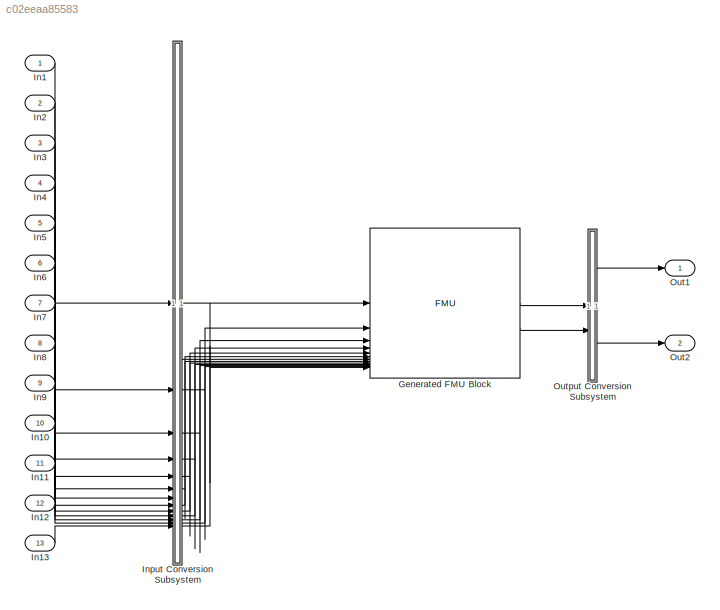
MODEL slx_c02eeaa85583
KIND model
CONFIG AbsTol = auto
CONFIG EnableMultiTasking = off
CONFIG FixedStep = auto
CONFIG MaxStep = auto
CONFIG MinStep = auto
CONFIG RelTol = 1e-3
CONFIG SampleTimeConstraint = Unconstrained
CONFIG SolverName = VariableStepAuto
CONFIG StartTime = 0.0
CONFIG StopTime = inf
BLOCK [FMU] Generated FMU Block
  FMUCreateBusObject = off
  FMUInitializeEnumObject = off
  FMUMode = CoSimulation
  FMUName = SH_control
  FMUSampleTime = 0.00026667
  MaskDisplay = if (exist([Simulink.fileGenControl('get','CacheFolder') '\slprj\_fmu\569492d8a8441ae19fe950d3b8ff40c2\SH_control\model.png'],'file'))\n    image([Simulink.fileGenControl('get','CacheFolder') '\slprj\_fmu\569492d8a8441ae19fe950d3b8ff40c2\SH_control\model.png']);\nelse\n    disp('SH_control');\nend\nport_label('output',1,'volt_req_d');\nport_label('output',2,'volt_req_q');\nport_label('input',1,'LD_current...<+471ch>
  MaskType = SH_control [Co-Simulation, v2.0]
BLOCK [Inport] In1
  OutDataTypeStr = double
  PortDimensions = [3]
  SampleTime = 0.00026667
  SignalType = real
  VarSizeSig = No
BLOCK [Inport] In10
  OutDataTypeStr = double
  Port = 10
  PortDimensions = [3]
  SampleTime = 0.00026667
  SignalType = real
  VarSizeSig = No
BLOCK [Inport] In11
  OutDataTypeStr = double
  Port = 11
  PortDimensions = [3]
  SampleTime = 0.00026667
  SignalType = real
  VarSizeSig = No
BLOCK [Inport] In12
  OutDataTypeStr = double
  Port = 12
  PortDimensions = [3]
  SampleTime = 0.00026667
  SignalType = real
  VarSizeSig = No
BLOCK [Inport] In13
  OutDataTypeStr = double
  Port = 13
  PortDimensions = [3]
  SampleTime = 0.00026667
  SignalType = real
  VarSizeSig = No
BLOCK [Inport] In2
  OutDataTypeStr = int32
  Port = 2
  PortDimensions = [1]
  SampleTime = 0.00026667
  SignalType = real
  VarSizeSig = No
BLOCK [Inport] In3
  OutDataTypeStr = int32
  Port = 3
  PortDimensions = [1]
  SampleTime = 0.00026667
  SignalType = real
  VarSizeSig = No
BLOCK [Inport] In4
  OutDataTypeStr = double
  Port = 4
  PortDimensions = [1]
  SampleTime = 0.00026667
  SignalType = real
  VarSizeSig = No
BLOCK [Inport] In5
  OutDataTypeStr = double
  Port = 5
  PortDimensions = [1]
  SampleTime = 0.00026667
  SignalType = real
  VarSizeSig = No
BLOCK [Inport] In6
  OutDataTypeStr = double
  Port = 6
  PortDimensions = [3]
  SampleTime = 0.00026667
  SignalType = real
  VarSizeSig = No
BLOCK [Inport] In7
  OutDataTypeStr = int32
  Port = 7
  PortDimensions = [1]
  SampleTime = 0.00026667
  SignalType = real
  VarSizeSig = No
BLOCK [Inport] In8
  OutDataTypeStr = double
  Port = 8
  PortDimensions = [3]
  SampleTime = 0.00026667
  SignalType = real
  VarSizeSig = No
BLOCK [Inport] In9
  OutDataTypeStr = double
  Port = 9
  PortDimensions = [3]
  SampleTime = 0.00026667
  SignalType = real
  VarSizeSig = No
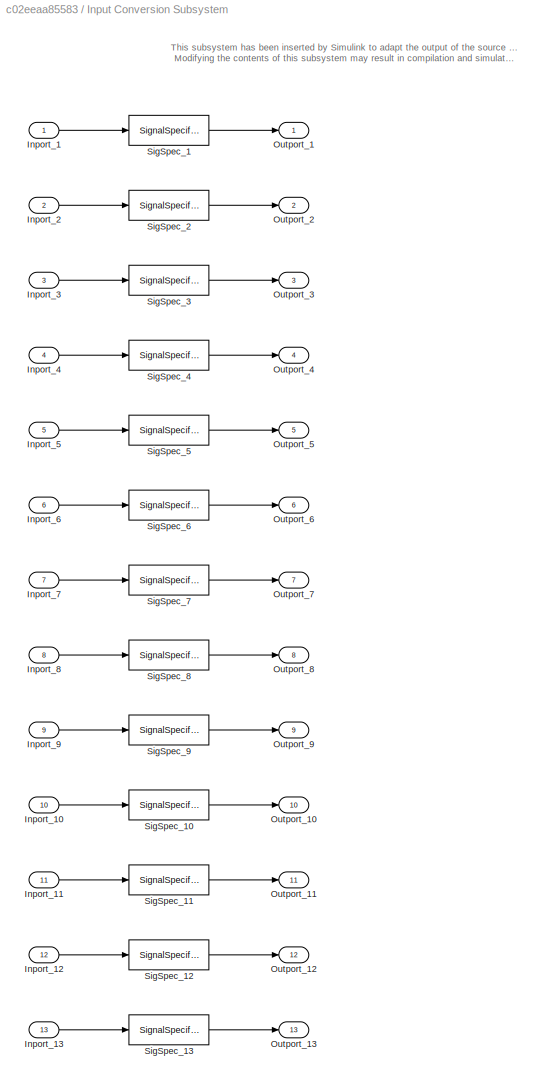
BLOCK [SubSystem] Input Conversion Subsystem
  AttributesFormatString = %<Description>
  Description = Signal spec.\nand routing
  Permissions = ReadOnly
  PermitHierarchicalResolution = ExplicitOnly
  Tag = __SLT_ICS__
  TreatAsGroupedWhenPropagatingVariantConditions = off
  UserDataPersistent = on
BLOCK [Inport] Input Conversion Subsystem/Inport_1
BLOCK [Inport] Input Conversion Subsystem/Inport_10
  Port = 10
BLOCK [Inport] Input Conversion Subsystem/Inport_11
  Port = 11
BLOCK [Inport] Input Conversion Subsystem/Inport_12
  Port = 12
BLOCK [Inport] Input Conversion Subsystem/Inport_13
  Port = 13
BLOCK [Inport] Input Conversion Subsystem/Inport_2
  Port = 2
BLOCK [Inport] Input Conversion Subsystem/Inport_3
  Port = 3
BLOCK [Inport] Input Conversion Subsystem/Inport_4
  Port = 4
BLOCK [Inport] Input Conversion Subsystem/Inport_5
  Port = 5
BLOCK [Inport] Input Conversion Subsystem/Inport_6
  Port = 6
BLOCK [Inport] Input Conversion Subsystem/Inport_7
  Port = 7
BLOCK [Inport] Input Conversion Subsystem/Inport_8
  Port = 8
BLOCK [Inport] Input Conversion Subsystem/Inport_9
  Port = 9
BLOCK [Outport] Input Conversion Subsystem/Outport_1
BLOCK [Outport] Input Conversion Subsystem/Outport_10
  Port = 10
BLOCK [Outport] Input Conversion Subsystem/Outport_11
  Port = 11
BLOCK [Outport] Input Conversion Subsystem/Outport_12
  Port = 12
BLOCK [Outport] Input Conversion Subsystem/Outport_13
  Port = 13
BLOCK [Outport] Input Conversion Subsystem/Outport_2
  Port = 2
BLOCK [Outport] Input Conversion Subsystem/Outport_3
  Port = 3
BLOCK [Outport] Input Conversion Subsystem/Outport_4
  Port = 4
BLOCK [Outport] Input Conversion Subsystem/Outport_5
  Port = 5
BLOCK [Outport] Input Conversion Subsystem/Outport_6
  Port = 6
BLOCK [Outport] Input Conversion Subsystem/Outport_7
  Port = 7
BLOCK [Outport] Input Conversion Subsystem/Outport_8
  Port = 8
BLOCK [Outport] Input Conversion Subsystem/Outport_9
  Port = 9
BLOCK [SignalSpecification] Input Conversion Subsystem/SigSpec_1
  Dimensions = [3]
  OutDataTypeStr = double
  SampleTime = 0.00026667
  SignalType = real
  VarSizeSig = No
BLOCK [SignalSpecification] Input Conversion Subsystem/SigSpec_10
  Dimensions = [3]
  OutDataTypeStr = double
  SampleTime = 0.00026667
  SignalType = real
  VarSizeSig = No
BLOCK [SignalSpecification] Input Conversion Subsystem/SigSpec_11
  Dimensions = [3]
  OutDataTypeStr = double
  SampleTime = 0.00026667
  SignalType = real
  VarSizeSig = No
BLOCK [SignalSpecification] Input Conversion Subsystem/SigSpec_12
  Dimensions = [3]
  OutDataTypeStr = double
  SampleTime = 0.00026667
  SignalType = real
  VarSizeSig = No
BLOCK [SignalSpecification] Input Conversion Subsystem/SigSpec_13
  Dimensions = [3]
  OutDataTypeStr = double
  SampleTime = 0.00026667
  SignalType = real
  VarSizeSig = No
BLOCK [SignalSpecification] Input Conversion Subsystem/SigSpec_2
  Dimensions = [1]
  OutDataTypeStr = int32
  SampleTime = 0.00026667
  SignalType = real
  VarSizeSig = No
BLOCK [SignalSpecification] Input Conversion Subsystem/SigSpec_3
  Dimensions = [1]
  OutDataTypeStr = int32
  SampleTime = 0.00026667
  SignalType = real
  VarSizeSig = No
BLOCK [SignalSpecification] Input Conversion Subsystem/SigSpec_4
  Dimensions = [1]
  OutDataTypeStr = double
  SampleTime = 0.00026667
  SignalType = real
  VarSizeSig = No
BLOCK [SignalSpecification] Input Conversion Subsystem/SigSpec_5
  Dimensions = [1]
  OutDataTypeStr = double
  SampleTime = 0.00026667
  SignalType = real
  VarSizeSig = No
BLOCK [SignalSpecification] Input Conversion Subsystem/SigSpec_6
  Dimensions = [3]
  OutDataTypeStr = double
  SampleTime = 0.00026667
  SignalType = real
  VarSizeSig = No
BLOCK [SignalSpecification] Input Conversion Subsystem/SigSpec_7
  Dimensions = [1]
  OutDataTypeStr = int32
  SampleTime = 0.00026667
  SignalType = real
  VarSizeSig = No
BLOCK [SignalSpecification] Input Conversion Subsystem/SigSpec_8
  Dimensions = [3]
  OutDataTypeStr = double
  SampleTime = 0.00026667
  SignalType = real
  VarSizeSig = No
BLOCK [SignalSpecification] Input Conversion Subsystem/SigSpec_9
  Dimensions = [3]
  OutDataTypeStr = double
  SampleTime = 0.00026667
  SignalType = real
  VarSizeSig = No
BLOCK [Outport] Out1
BLOCK [Outport] Out2
  Port = 2
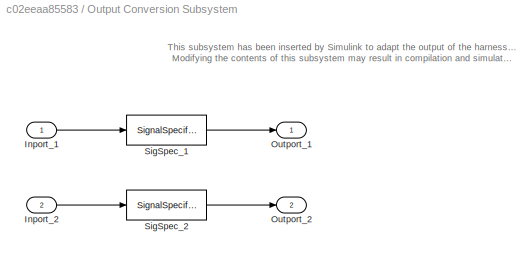
BLOCK [SubSystem] Output Conversion Subsystem
  AttributesFormatString = %<Description>
  Description = Signal spec.\nand routing
  Permissions = ReadOnly
  PermitHierarchicalResolution = ExplicitOnly
  Tag = __SLT_OCS__
  TreatAsGroupedWhenPropagatingVariantConditions = off
  UserDataPersistent = on
BLOCK [Inport] Output Conversion Subsystem/Inport_1
BLOCK [Inport] Output Conversion Subsystem/Inport_2
  Port = 2
BLOCK [Outport] Output Conversion Subsystem/Outport_1
BLOCK [Outport] Output Conversion Subsystem/Outport_2
  Port = 2
BLOCK [SignalSpecification] Output Conversion Subsystem/SigSpec_1
  Dimensions = [3]
  OutDataTypeStr = double
  SampleTime = 0.00026667
  SignalType = real
  VarSizeSig = No
BLOCK [SignalSpecification] Output Conversion Subsystem/SigSpec_2
  Dimensions = [3]
  OutDataTypeStr = double
  SampleTime = 0.00026667
  SignalType = real
  VarSizeSig = No
ANNOTATION Input Conversion Subsystem: This subsystem has been inserted by Simulink to adapt the output of the source blocks to the interface required by the harnessed component. Modifying the contents of this subsystem may result in compilation and simulation failure.
ANNOTATION Output Conversion Subsystem: This subsystem has been inserted by Simulink to adapt the output of the harnessed component to the interface required by the sink blocks. Modifying the contents of this subsystem may result in compilation and simulation failure.
LINE Generated FMU Block:1 -> Output Conversion Subsystem:1
LINE Generated FMU Block:2 -> Output Conversion Subsystem:2
LINE In10:1 -> Input Conversion Subsystem:10
LINE In11:1 -> Input Conversion Subsystem:11
LINE In12:1 -> Input Conversion Subsystem:12
LINE In13:1 -> Input Conversion Subsystem:13
LINE In1:1 -> Input Conversion Subsystem:1
LINE In2:1 -> Input Conversion Subsystem:2
LINE In3:1 -> Input Conversion Subsystem:3
LINE In4:1 -> Input Conversion Subsystem:4
LINE In5:1 -> Input Conversion Subsystem:5
LINE In6:1 -> Input Conversion Subsystem:6
LINE In7:1 -> Input Conversion Subsystem:7
LINE In8:1 -> Input Conversion Subsystem:8
LINE In9:1 -> Input Conversion Subsystem:9
LINE Input Conversion Subsystem/Inport_10:1 -> Input Conversion Subsystem/SigSpec_10:1
LINE Input Conversion Subsystem/Inport_11:1 -> Input Conversion Subsystem/SigSpec_11:1
LINE Input Conversion Subsystem/Inport_12:1 -> Input Conversion Subsystem/SigSpec_12:1
LINE Input Conversion Subsystem/Inport_13:1 -> Input Conversion Subsystem/SigSpec_13:1
LINE Input Conversion Subsystem/Inport_1:1 -> Input Conversion Subsystem/SigSpec_1:1
LINE Input Conversion Subsystem/Inport_2:1 -> Input Conversion Subsystem/SigSpec_2:1
LINE Input Conversion Subsystem/Inport_3:1 -> Input Conversion Subsystem/SigSpec_3:1
LINE Input Conversion Subsystem/Inport_4:1 -> Input Conversion Subsystem/SigSpec_4:1
LINE Input Conversion Subsystem/Inport_5:1 -> Input Conversion Subsystem/SigSpec_5:1
LINE Input Conversion Subsystem/Inport_6:1 -> Input Conversion Subsystem/SigSpec_6:1
LINE Input Conversion Subsystem/Inport_7:1 -> Input Conversion Subsystem/SigSpec_7:1
LINE Input Conversion Subsystem/Inport_8:1 -> Input Conversion Subsystem/SigSpec_8:1
LINE Input Conversion Subsystem/Inport_9:1 -> Input Conversion Subsystem/SigSpec_9:1
LINE Input Conversion Subsystem/SigSpec_10:1 -> Input Conversion Subsystem/Outport_10:1
LINE Input Conversion Subsystem/SigSpec_11:1 -> Input Conversion Subsystem/Outport_11:1
LINE Input Conversion Subsystem/SigSpec_12:1 -> Input Conversion Subsystem/Outport_12:1
LINE Input Conversion Subsystem/SigSpec_13:1 -> Input Conversion Subsystem/Outport_13:1
LINE Input Conversion Subsystem/SigSpec_1:1 -> Input Conversion Subsystem/Outport_1:1
LINE Input Conversion Subsystem/SigSpec_2:1 -> Input Conversion Subsystem/Outport_2:1
LINE Input Conversion Subsystem/SigSpec_3:1 -> Input Conversion Subsystem/Outport_3:1
LINE Input Conversion Subsystem/SigSpec_4:1 -> Input Conversion Subsystem/Outport_4:1
LINE Input Conversion Subsystem/SigSpec_5:1 -> Input Conversion Subsystem/Outport_5:1
LINE Input Conversion Subsystem/SigSpec_6:1 -> Input Conversion Subsystem/Outport_6:1
LINE Input Conversion Subsystem/SigSpec_7:1 -> Input Conversion Subsystem/Outport_7:1
LINE Input Conversion Subsystem/SigSpec_8:1 -> Input Conversion Subsystem/Outport_8:1
LINE Input Conversion Subsystem/SigSpec_9:1 -> Input Conversion Subsystem/Outport_9:1
LINE Input Conversion Subsystem:1 -> Generated FMU Block:1
LINE Input Conversion Subsystem:10 -> Generated FMU Block:10
LINE Input Conversion Subsystem:11 -> Generated FMU Block:11
LINE Input Conversion Subsystem:12 -> Generated FMU Block:12
LINE Input Conversion Subsystem:13 -> Generated FMU Block:13
LINE Input Conversion Subsystem:2 -> Generated FMU Block:2
LINE Input Conversion Subsystem:3 -> Generated FMU Block:3
LINE Input Conversion Subsystem:4 -> Generated FMU Block:4
LINE Input Conversion Subsystem:5 -> Generated FMU Block:5
LINE Input Conversion Subsystem:6 -> Generated FMU Block:6
LINE Input Conversion Subsystem:7 -> Generated FMU Block:7
LINE Input Conversion Subsystem:8 -> Generated FMU Block:8
LINE Input Conversion Subsystem:9 -> Generated FMU Block:9
LINE Output Conversion Subsystem/Inport_1:1 -> Output Conversion Subsystem/SigSpec_1:1
LINE Output Conversion Subsystem/Inport_2:1 -> Output Conversion Subsystem/SigSpec_2:1
LINE Output Conversion Subsystem/SigSpec_1:1 -> Output Conversion Subsystem/Outport_1:1
LINE Output Conversion Subsystem/SigSpec_2:1 -> Output Conversion Subsystem/Outport_2:1
LINE Output Conversion Subsystem:1 -> Out1:1
LINE Output Conversion Subsystem:2 -> Out2:1
